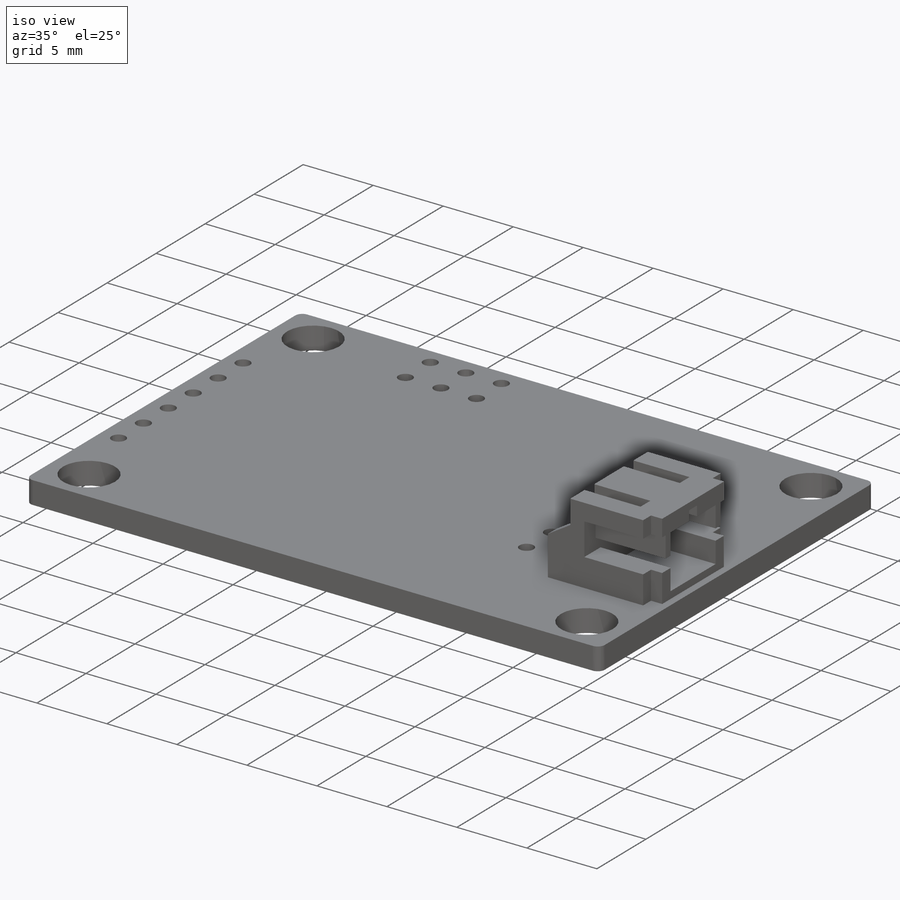
[diagram: iso view]
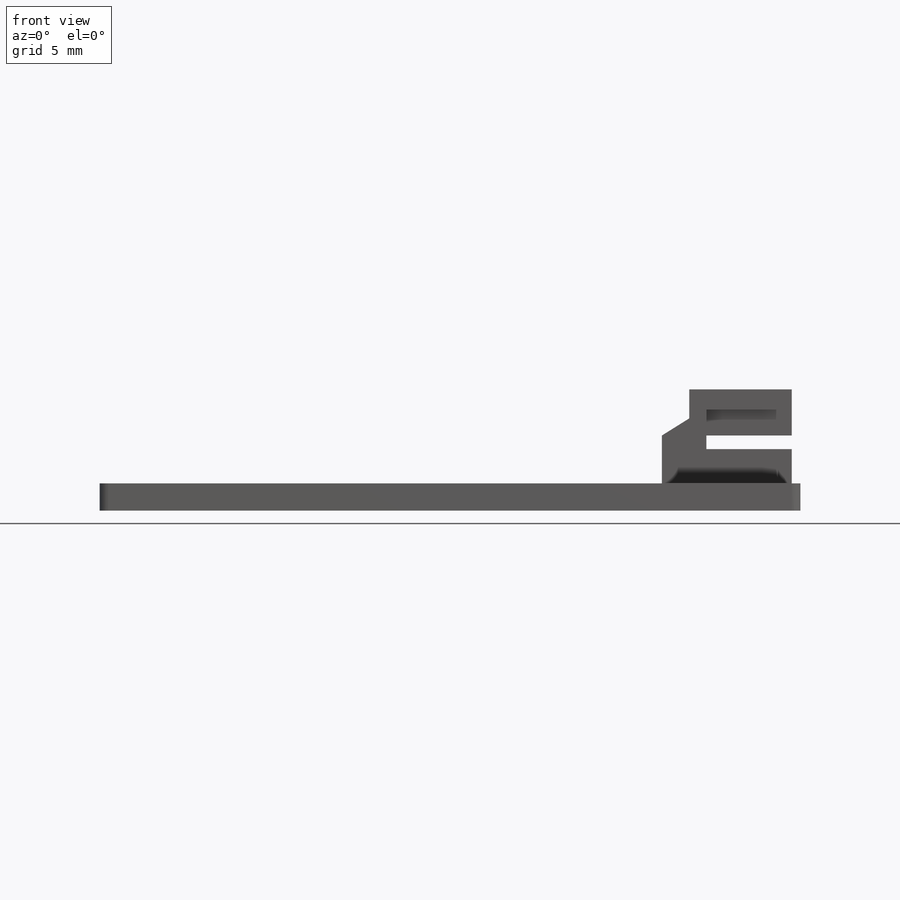
[diagram: front view]
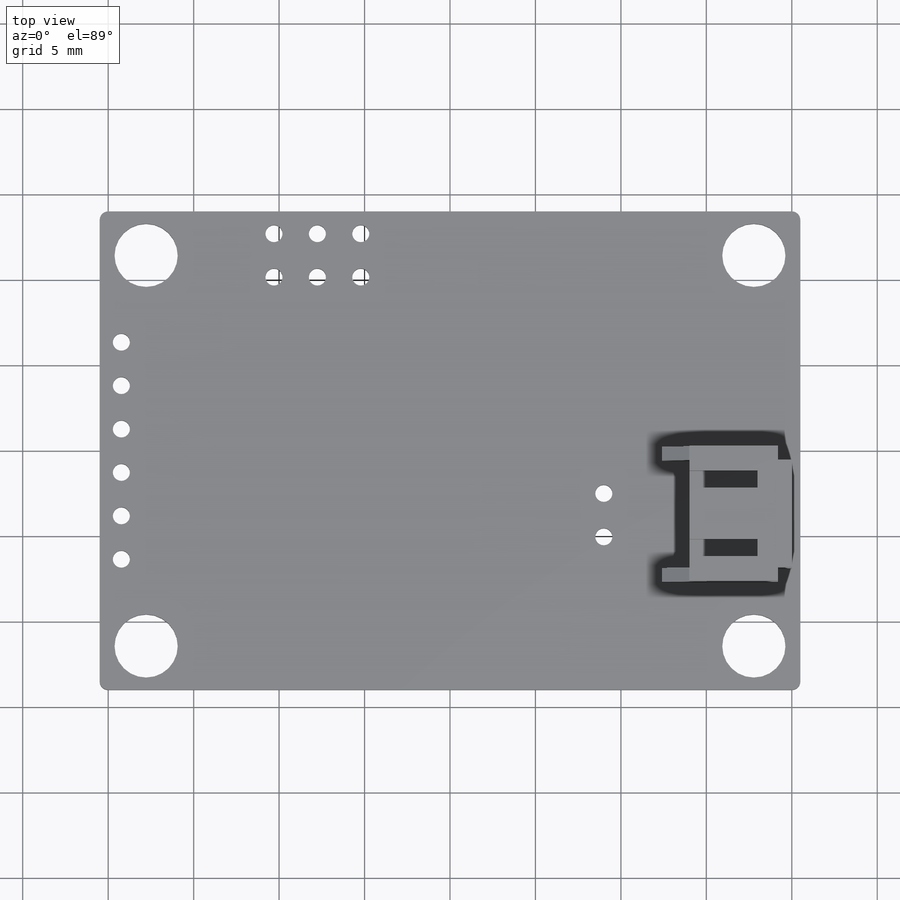
[diagram: top view]
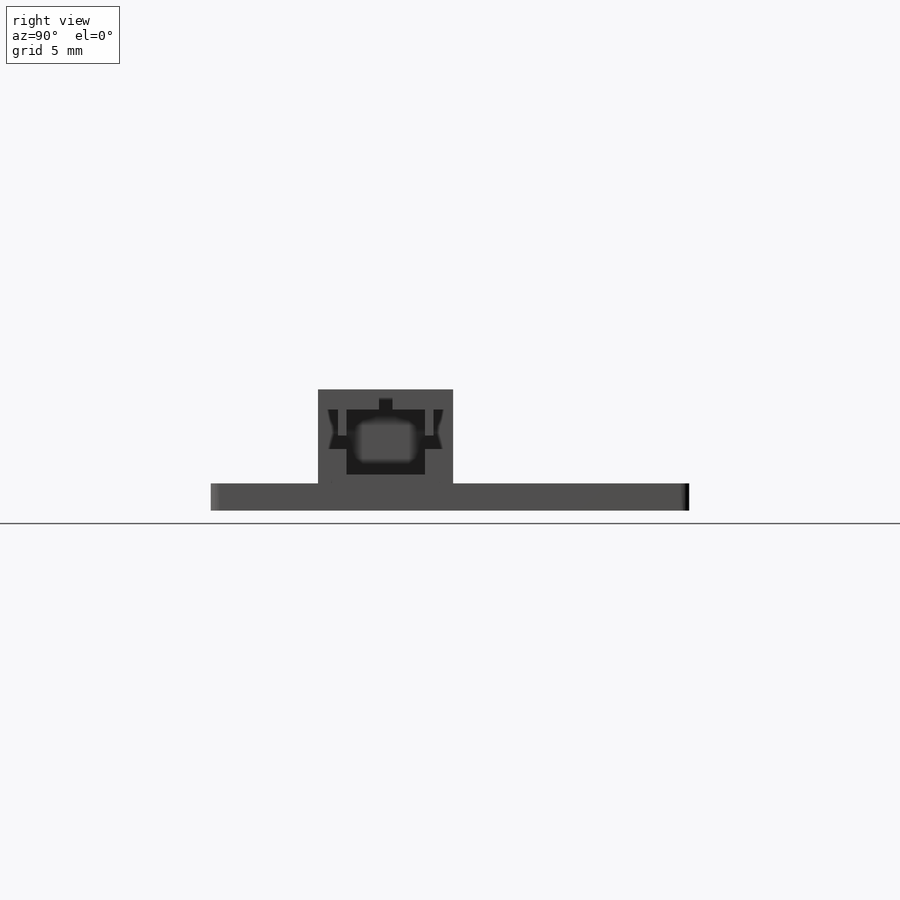
[diagram: right view]
SOLIDWORKS PART (.sldprt)
format: sldprt  version: not decoded by parser v0  size: 679,424 bytes
history: native  units: mm
features: sketch x9, cut_extrude x4, extrude x3, material x1, fillet x1, mirror x1 (+13 scaffold rows collapsed; 1 parser-record rows omitted)
feature tree (33):
  scaffold x13  (default folders/planes/origin — collapsed)
  material  "Material <not specified>"
  sketch  "dimension"  dims[D3=3.7mm D1=35.56mm D2=22.86mm D4=28.0mm D5=41.0mm]
  sketch  "pin-holes"  dims[D3=1.0mm D2=2.54mm D6=10.2mm D7=2.54mm D8=2.54mm D9=2.54mm D10=11.5mm D11=11.5mm D12=1.27mm D1=6.0 D4=3.0 D5=2.0]
  sketch  "Sketch1"
  extrude  "board"  Depth=1.6mm
  sketch  "Sketch4"  dims[D1=0.0mm D2=0.0mm D3=0.0mm D4=0.0mm D5=0.0mm D6=0.0mm D7=0.0mm D8=0.0mm D9=0.0mm D10=0.0mm D11=0.0mm D12=0.0mm D13=0.0mm D14=0.0mm]
  cut_extrude  "holes"  [1 undecoded]
  fillet  "Fillet1"  Radius=0.5mm
  parser-record x1  (decoder bookkeeping rows leaked as tree rows — omitted from the tree; the rows remain in map.json)
  sketch  "Sketch5"  dims[D1=3.95mm D2=6.0mm D3=0.5mm D4=5.0mm]
  extrude  "Boss-Extrude2"  Depth=5.5mm
  sketch  "Sketch8"  dims[D1=7.6mm D2=3.8mm D3=2.8mm]
  extrude  "Boss-Extrude3"  Depth=0.8mm
  sketch  "Sketch6"  dims[c1.D1=1.5mm c1.D2=1.2mm c1.D3=1.5mm c1.D4=0.5mm c1.D5=4.8mm c2.D1=0.8mm c2.D3=0.5mm c3.D1=0.5mm c3.D5=2.0mm c3.D6=4.6mm c3.D7=0.8mm c3.D8=0.8mm c4.D6=0.4mm c4.D7=2.3mm]
  cut_extrude  "Cut-Extrude2"  Depth=5mm
  sketch  "Sketch7"  dims[c1.D1=1.0mm c1.D2=3.0mm c1.D3=4.0mm c2.D1=1.0mm c2.D2=4.0mm c2.D3=2.5mm c2.D4=1.0mm]
  cut_extrude  "Cut-Extrude3"  Depth=1mm
  sketch  "Sketch9"  dims[D1=0.8mm]
  cut_extrude  "Cut-Extrude4"  [1 undecoded]
  mirror  "Mirror1"
decode coverage: 14 of 18 modeling features carry decoded parameters
note: 2 parameter values undecoded
note: suppression state not decoded; provenance and decode notes live in map.json
